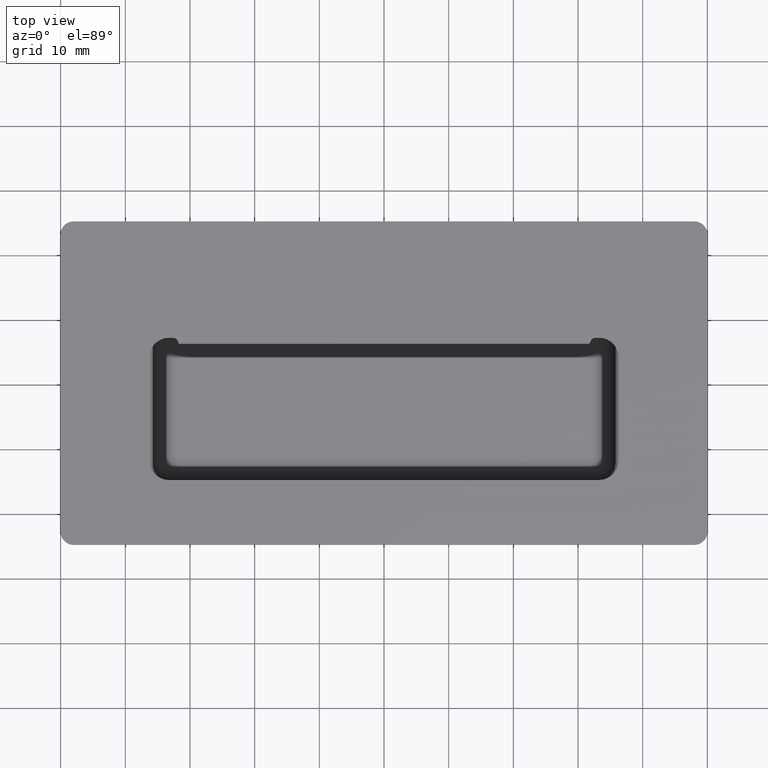
[diagram: clean part render]
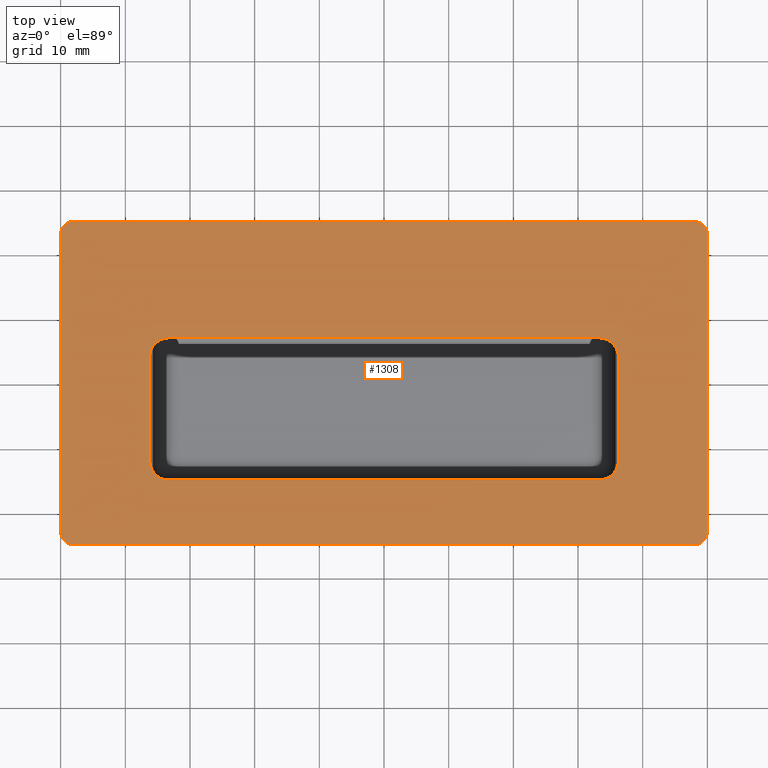
[diagram: same view with one face highlighted and labeled with its STEP entity id]
A machine part, top view. The second image highlights one B-rep face of the part: STEP entity #1308.
In plain terms, the highlighted planar face has unit normal (0, 0, 1).
Its self-contained STEP definition (entity closure, byte-faithful):
#33=FACE_BOUND('',#415,.T.);
#74=LINE('',#2129,#182);
#79=LINE('',#2248,#187);
#86=LINE('',#2265,#194);
#87=LINE('',#2269,#195);
#88=LINE('',#2273,#196);
#89=LINE('',#2277,#197);
#90=LINE('',#2281,#198);
#91=LINE('',#2286,#199);
#92=LINE('',#2290,#200);
#93=LINE('',#2294,#201);
#182=VECTOR('',#1564,0.589820278874051);
#187=VECTOR('',#1573,0.589820278865307);
#194=VECTOR('',#1590,65.3203594422607);
#195=VECTOR('',#1593,46.);
#196=VECTOR('',#1596,96.);
#197=VECTOR('',#1599,46.);
#198=VECTOR('',#1602,96.);
#199=VECTOR('',#1607,16.);
#200=VECTOR('',#1610,66.5);
#201=VECTOR('',#1613,16.);
#294=PLANE('',#1399);
#328=FACE_OUTER_BOUND('',#414,.T.);
#414=EDGE_LOOP('',(#935,#936,#937,#938,#939,#940,#941,#942));
#415=EDGE_LOOP('',(#943,#944,#945,#946,#947,#948,#949,#950,#951,#952));
#501=CIRCLE('',#1400,2.00000000000002);
#502=CIRCLE('',#1401,2.);
#503=CIRCLE('',#1402,2.00000000000002);
#504=CIRCLE('',#1403,1.99999999999999);
#505=CIRCLE('',#1404,2.99999999999999);
#506=CIRCLE('',#1405,2.99999999999999);
#507=CIRCLE('',#1406,3.);
#508=CIRCLE('',#1407,3.00000000000001);
#590=VERTEX_POINT('',#2095);
#591=VERTEX_POINT('',#2128);
#594=VERTEX_POINT('',#2194);
#598=VERTEX_POINT('',#2246);
#604=VERTEX_POINT('',#2267);
#605=VERTEX_POINT('',#2268);
#606=VERTEX_POINT('',#2270);
#607=VERTEX_POINT('',#2272);
#608=VERTEX_POINT('',#2274);
#609=VERTEX_POINT('',#2276);
#610=VERTEX_POINT('',#2278);
#611=VERTEX_POINT('',#2280);
#612=VERTEX_POINT('',#2283);
#613=VERTEX_POINT('',#2285);
#614=VERTEX_POINT('',#2287);
#615=VERTEX_POINT('',#2289);
#616=VERTEX_POINT('',#2291);
#617=VERTEX_POINT('',#2293);
#709=EDGE_CURVE('',#591,#590,#74,.T.);
#718=EDGE_CURVE('',#594,#598,#79,.T.);
#727=EDGE_CURVE('',#590,#594,#86,.T.);
#728=EDGE_CURVE('',#604,#605,#87,.T.);
#729=EDGE_CURVE('',#605,#606,#501,.T.);
#730=EDGE_CURVE('',#606,#607,#88,.T.);
#731=EDGE_CURVE('',#607,#608,#502,.T.);
#732=EDGE_CURVE('',#608,#609,#89,.T.);
#733=EDGE_CURVE('',#609,#610,#503,.T.);
#734=EDGE_CURVE('',#610,#611,#90,.T.);
#735=EDGE_CURVE('',#611,#604,#504,.T.);
#736=EDGE_CURVE('',#598,#612,#505,.T.);
#737=EDGE_CURVE('',#612,#613,#91,.T.);
#738=EDGE_CURVE('',#613,#614,#506,.T.);
#739=EDGE_CURVE('',#614,#615,#92,.T.);
#740=EDGE_CURVE('',#615,#616,#507,.T.);
#741=EDGE_CURVE('',#616,#617,#93,.T.);
#742=EDGE_CURVE('',#617,#591,#508,.T.);
#935=ORIENTED_EDGE('',*,*,#728,.T.);
#936=ORIENTED_EDGE('',*,*,#729,.T.);
#937=ORIENTED_EDGE('',*,*,#730,.T.);
#938=ORIENTED_EDGE('',*,*,#731,.T.);
#939=ORIENTED_EDGE('',*,*,#732,.T.);
#940=ORIENTED_EDGE('',*,*,#733,.T.);
#941=ORIENTED_EDGE('',*,*,#734,.T.);
#942=ORIENTED_EDGE('',*,*,#735,.T.);
#943=ORIENTED_EDGE('',*,*,#727,.T.);
#944=ORIENTED_EDGE('',*,*,#718,.T.);
#945=ORIENTED_EDGE('',*,*,#736,.T.);
#946=ORIENTED_EDGE('',*,*,#737,.T.);
#947=ORIENTED_EDGE('',*,*,#738,.T.);
#948=ORIENTED_EDGE('',*,*,#739,.T.);
#949=ORIENTED_EDGE('',*,*,#740,.T.);
#950=ORIENTED_EDGE('',*,*,#741,.T.);
#951=ORIENTED_EDGE('',*,*,#742,.T.);
#952=ORIENTED_EDGE('',*,*,#709,.T.);
#1308=ADVANCED_FACE('',(#328,#33),#294,.T.);
#1399=AXIS2_PLACEMENT_3D('',#2266,#1591,#1592);
#1400=AXIS2_PLACEMENT_3D('',#2271,#1594,#1595);
#1401=AXIS2_PLACEMENT_3D('',#2275,#1597,#1598);
#1402=AXIS2_PLACEMENT_3D('',#2279,#1600,#1601);
#1403=AXIS2_PLACEMENT_3D('',#2282,#1603,#1604);
#1404=AXIS2_PLACEMENT_3D('',#2284,#1605,#1606);
#1405=AXIS2_PLACEMENT_3D('',#2288,#1608,#1609);
#1406=AXIS2_PLACEMENT_3D('',#2292,#1611,#1612);
#1407=AXIS2_PLACEMENT_3D('',#2295,#1614,#1615);
#1564=DIRECTION('',(1.,6.67803323082801E-17,0.));
#1573=DIRECTION('',(1.,6.67803323082801E-17,0.));
#1590=DIRECTION('',(1.,6.67803323082801E-17,0.));
#1591=DIRECTION('center_axis',(0.,0.,1.));
#1592=DIRECTION('ref_axis',(1.,0.,0.));
#1593=DIRECTION('',(0.,-1.,0.));
#1594=DIRECTION('center_axis',(0.,0.,1.));
#1595=DIRECTION('ref_axis',(-1.,-6.6613381477509E-15,0.));
#1596=DIRECTION('',(1.,0.,0.));
#1597=DIRECTION('center_axis',(0.,0.,1.));
#1598=DIRECTION('ref_axis',(-8.88178419700124E-15,-1.,0.));
#1599=DIRECTION('',(0.,1.,0.));
#1600=DIRECTION('center_axis',(0.,0.,1.));
#1601=DIRECTION('ref_axis',(1.,6.6613381477509E-15,0.));
#1602=DIRECTION('',(-1.,-4.62592926927149E-17,0.));
#1603=DIRECTION('center_axis',(0.,0.,1.));
#1604=DIRECTION('ref_axis',(0.,1.,0.));
#1605=DIRECTION('center_axis',(0.,0.,-1.));
#1606=DIRECTION('ref_axis',(1.,1.8503717077086E-16,0.));
#1607=DIRECTION('',(2.77555756156289E-16,-1.,0.));
#1608=DIRECTION('center_axis',(0.,0.,-1.));
#1609=DIRECTION('ref_axis',(-4.44089209850064E-15,-1.,0.));
#1610=DIRECTION('',(-1.,-3.33901661541401E-17,0.));
#1611=DIRECTION('center_axis',(0.,0.,-1.));
#1612=DIRECTION('ref_axis',(-1.,7.40148683083438E-16,0.));
#1613=DIRECTION('',(-2.77555756156289E-16,1.,0.));
#1614=DIRECTION('center_axis',(0.,0.,-1.));
#1615=DIRECTION('ref_axis',(0.,1.,0.));
#2095=CARTESIAN_POINT('',(-32.660179721126,6.99999999999999,1.49999999999769));
#2128=CARTESIAN_POINT('',(-33.25,6.99999999999999,1.5));
#2129=CARTESIAN_POINT('',(-16.625,7.,1.5));
#2194=CARTESIAN_POINT('',(32.6601797211347,7.,1.4999999999841));
#2246=CARTESIAN_POINT('',(33.25,7.,1.5));
#2248=CARTESIAN_POINT('',(-16.625,7.,1.5));
#2265=CARTESIAN_POINT('',(-16.625,7.,1.5));
#2266=CARTESIAN_POINT('Origin',(-2.72424361461726E-15,1.8445399473971E-15,
1.5));
#2267=CARTESIAN_POINT('',(-50.,23.,1.5));
#2268=CARTESIAN_POINT('',(-50.,-23.,1.5));
#2269=CARTESIAN_POINT('',(-50.,23.,1.5));
#2270=CARTESIAN_POINT('',(-48.,-25.,1.5));
#2271=CARTESIAN_POINT('Origin',(-48.,-23.,1.5));
#2272=CARTESIAN_POINT('',(48.,-25.,1.5));
#2273=CARTESIAN_POINT('',(-48.,-25.,1.5));
#2274=CARTESIAN_POINT('',(50.,-23.,1.5));
#2275=CARTESIAN_POINT('Origin',(48.,-23.,1.5));
#2276=CARTESIAN_POINT('',(50.,23.,1.5));
#2277=CARTESIAN_POINT('',(50.,-23.,1.5));
#2278=CARTESIAN_POINT('',(48.,25.,1.5));
#2279=CARTESIAN_POINT('Origin',(48.,23.,1.5));
#2280=CARTESIAN_POINT('',(-48.,25.,1.5));
#2281=CARTESIAN_POINT('',(48.,25.,1.5));
#2282=CARTESIAN_POINT('Origin',(-48.,23.,1.5));
#2283=CARTESIAN_POINT('',(36.25,4.,1.5));
#2284=CARTESIAN_POINT('Origin',(33.25,4.,1.5));
#2285=CARTESIAN_POINT('',(36.25,-12.,1.5));
#2286=CARTESIAN_POINT('',(36.25,2.00000000000001,1.5));
#2287=CARTESIAN_POINT('',(33.25,-15.,1.5));
#2288=CARTESIAN_POINT('Origin',(33.25,-12.,1.5));
#2289=CARTESIAN_POINT('',(-33.25,-15.,1.5));
#2290=CARTESIAN_POINT('',(16.625,-15.,1.5));
#2291=CARTESIAN_POINT('',(-36.25,-12.,1.5));
#2292=CARTESIAN_POINT('Origin',(-33.25,-12.,1.5));
#2293=CARTESIAN_POINT('',(-36.25,3.99999999999999,1.5));
#2294=CARTESIAN_POINT('',(-36.25,-6.,1.5));
#2295=CARTESIAN_POINT('Origin',(-33.25,3.99999999999999,1.5));